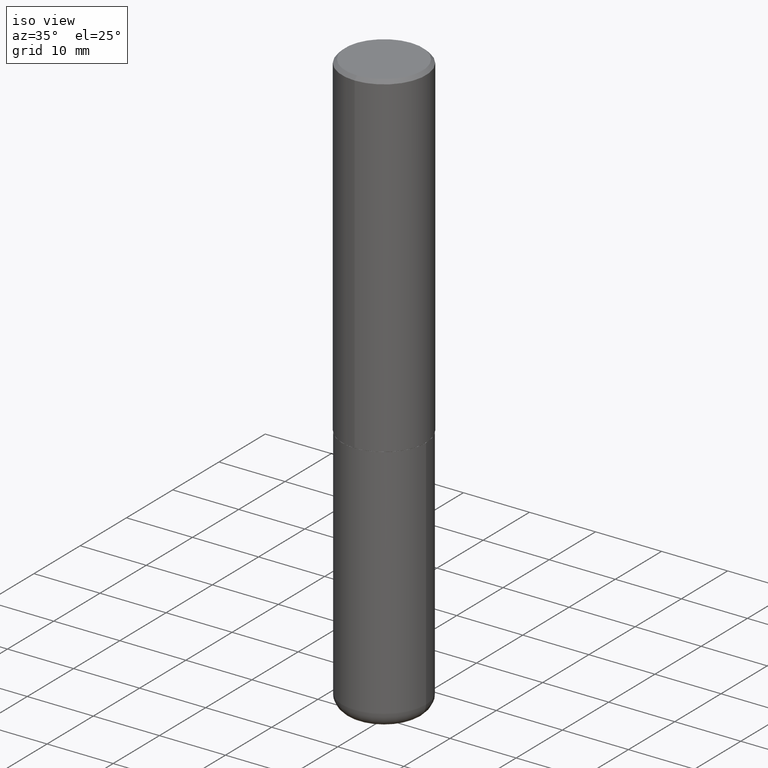
[diagram: clean part render]
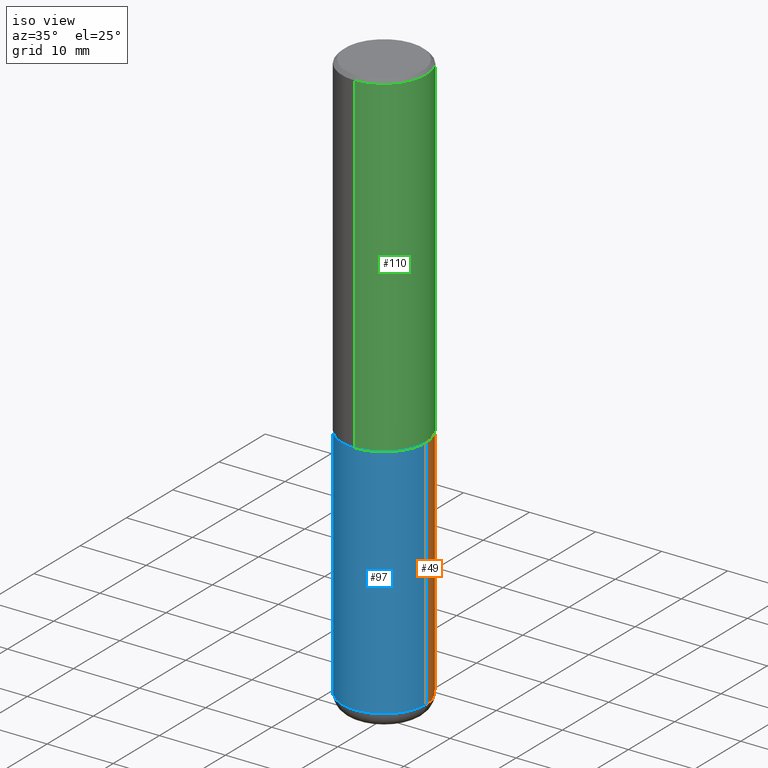
[diagram: same view with three faces highlighted in distinct colors, each labeled with its STEP entity id]
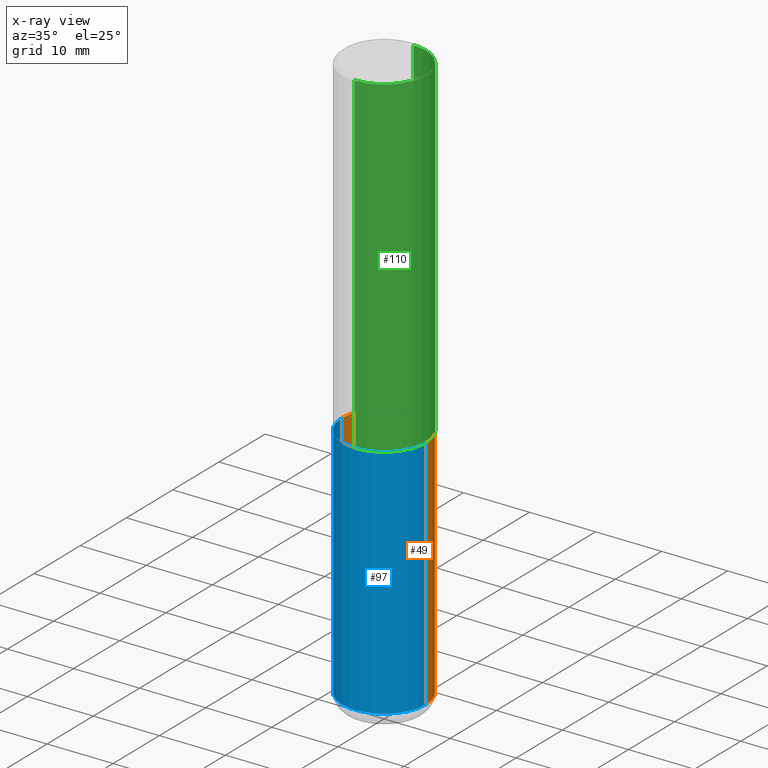
[diagram: x-ray of the same camera — body ghosted, the three highlighted faces saturated]
A machine part, iso view with three faces highlighted in distinct colors.
The next image is the same camera in x-ray (body ghosted, the three faces saturated) — at least one of them is partly hidden behind the body in this view.
Their STEP definitions:

[orange] entity #49 — the highlighted cylindrical surface (partial cylindrical patch) has radius 6.35 mm, axis along (-0, 0, 1).
#2 = EDGE_CURVE ( 'NONE', #184, #77, #141, .T. ) ;
#18 = LINE ( 'NONE', #335, #58 ) ;
#25 = CARTESIAN_POINT ( 'NONE',  ( 0.000000000000000000, 0.000000000000000000, 0.000000000000000000 ) ) ;
#49 = ADVANCED_FACE ( 'NONE', ( #84 ), #406, .T. ) ;
#58 = VECTOR ( 'NONE', #408, 39.37007874015748143 ) ;
#67 = CARTESIAN_POINT ( 'NONE',  ( 0.2499999999999998612, -1.365169203487669276E-14, -3.410000000000000142 ) ) ;
#70 = VERTEX_POINT ( 'NONE', #247 ) ;
#73 = AXIS2_PLACEMENT_3D ( 'NONE', #165, #171, #314 ) ;
#77 = VERTEX_POINT ( 'NONE', #220 ) ;
#84 = FACE_OUTER_BOUND ( 'NONE', #388, .T. ) ;
#87 = CIRCLE ( 'NONE', #189, 0.2500000000000000555 ) ;
#113 = CIRCLE ( 'NONE', #73, 0.2500000000000000000 ) ;
#135 = EDGE_CURVE ( 'NONE', #184, #207, #87, .T. ) ;
#141 = LINE ( 'NONE', #265, #211 ) ;
#157 = EDGE_CURVE ( 'NONE', #77, #70, #113, .T. ) ;
#165 = CARTESIAN_POINT ( 'NONE',  ( 4.890937612370272633E-29, -6.982962677686290376E-15, -1.999999999999999778 ) ) ;
#171 = DIRECTION ( 'NONE',  ( -2.445468806185136597E-29, 3.491481338843145583E-15, 1.000000000000000000 ) ) ;
#184 = VERTEX_POINT ( 'NONE', #67 ) ;
#185 = CARTESIAN_POINT ( 'NONE',  ( 8.339048629091315302E-29, -1.190595136545512608E-14, -3.410000000000000142 ) ) ;
#188 = DIRECTION ( 'NONE',  ( 1.000000000000000000, -6.982962677686269077E-15, 0.000000000000000000 ) ) ;
#189 = AXIS2_PLACEMENT_3D ( 'NONE', #185, #339, #188 ) ;
#207 = VERTEX_POINT ( 'NONE', #349 ) ;
#211 = VECTOR ( 'NONE', #393, 39.37007874015748143 ) ;
#220 = CARTESIAN_POINT ( 'NONE',  ( 0.2500000000000000000, -8.728703347107857054E-15, -1.999999999999999778 ) ) ;
#247 = CARTESIAN_POINT ( 'NONE',  ( -0.2500000000000000000, -7.668100182170457762E-15, -1.999999999999999778 ) ) ;
#265 = CARTESIAN_POINT ( 'NONE',  ( 0.2500000000000000000, -1.745740669421566678E-15, 1.219044193948983948E-29 ) ) ;
#271 = ORIENTED_EDGE ( 'NONE', *, *, #135, .T. ) ;
#306 = DIRECTION ( 'NONE',  ( -2.445468806185136597E-29, 3.491481338843145583E-15, 1.000000000000000000 ) ) ;
#314 = DIRECTION ( 'NONE',  ( 1.000000000000000000, -6.982962677686266711E-15, 0.000000000000000000 ) ) ;
#321 = EDGE_CURVE ( 'NONE', #207, #70, #18, .T. ) ;
#330 = ORIENTED_EDGE ( 'NONE', *, *, #157, .F. ) ;
#335 = CARTESIAN_POINT ( 'NONE',  ( -0.2500000000000000000, 1.776356839400250465E-15, -1.229733772563726445E-29 ) ) ;
#336 = DIRECTION ( 'NONE',  ( 1.000000000000000000, -6.982962677686266711E-15, 4.876176775795935793E-29 ) ) ;
#339 = DIRECTION ( 'NONE',  ( -2.445468806185136597E-29, 3.491481338843145583E-15, 1.000000000000000000 ) ) ;
#349 = CARTESIAN_POINT ( 'NONE',  ( -0.2499999999999998612, -1.012959452605487719E-14, -3.410000000000000142 ) ) ;
#356 = AXIS2_PLACEMENT_3D ( 'NONE', #25, #306, #336 ) ;
#363 = ORIENTED_EDGE ( 'NONE', *, *, #2, .F. ) ;
#388 = EDGE_LOOP ( 'NONE', ( #271, #395, #330, #363 ) ) ;
#393 = DIRECTION ( 'NONE',  ( -2.445468806185136877E-29, 3.491481338843145188E-15, 1.000000000000000000 ) ) ;
#395 = ORIENTED_EDGE ( 'NONE', *, *, #321, .T. ) ;
#406 = CYLINDRICAL_SURFACE ( 'NONE', #356, 0.2500000000000000000 ) ;
#408 = DIRECTION ( 'NONE',  ( -2.445468806185136877E-29, 3.491481338843145188E-15, 1.000000000000000000 ) ) ;

[blue] entity #97 — the highlighted cylindrical surface (partial cylindrical patch) has radius 6.35 mm, axis along (-0, 0, 1).
#2 = EDGE_CURVE ( 'NONE', #184, #77, #141, .T. ) ;
#8 = EDGE_CURVE ( 'NONE', #207, #184, #201, .T. ) ;
#18 = LINE ( 'NONE', #335, #58 ) ;
#23 = DIRECTION ( 'NONE',  ( 1.000000000000000000, -6.982962677686266711E-15, 0.000000000000000000 ) ) ;
#26 = FACE_OUTER_BOUND ( 'NONE', #152, .T. ) ;
#58 = VECTOR ( 'NONE', #408, 39.37007874015748143 ) ;
#67 = CARTESIAN_POINT ( 'NONE',  ( 0.2499999999999998612, -1.365169203487669276E-14, -3.410000000000000142 ) ) ;
#70 = VERTEX_POINT ( 'NONE', #247 ) ;
#77 = VERTEX_POINT ( 'NONE', #220 ) ;
#80 = ORIENTED_EDGE ( 'NONE', *, *, #2, .T. ) ;
#97 = ADVANCED_FACE ( 'NONE', ( #26 ), #370, .T. ) ;
#104 = CARTESIAN_POINT ( 'NONE',  ( 8.339048629091315302E-29, -1.190595136545512608E-14, -3.410000000000000142 ) ) ;
#125 = AXIS2_PLACEMENT_3D ( 'NONE', #104, #412, #342 ) ;
#141 = LINE ( 'NONE', #265, #211 ) ;
#151 = DIRECTION ( 'NONE',  ( -2.445468806185136597E-29, 3.491481338843145583E-15, 1.000000000000000000 ) ) ;
#152 = EDGE_LOOP ( 'NONE', ( #231, #242, #80, #236 ) ) ;
#183 = CARTESIAN_POINT ( 'NONE',  ( 0.000000000000000000, 0.000000000000000000, 0.000000000000000000 ) ) ;
#184 = VERTEX_POINT ( 'NONE', #67 ) ;
#201 = CIRCLE ( 'NONE', #125, 0.2500000000000000555 ) ;
#207 = VERTEX_POINT ( 'NONE', #349 ) ;
#211 = VECTOR ( 'NONE', #393, 39.37007874015748143 ) ;
#216 = CARTESIAN_POINT ( 'NONE',  ( 4.890937612370272633E-29, -6.982962677686290376E-15, -1.999999999999999778 ) ) ;
#217 = DIRECTION ( 'NONE',  ( 1.000000000000000000, -6.982962677686266711E-15, 4.876176775795935793E-29 ) ) ;
#220 = CARTESIAN_POINT ( 'NONE',  ( 0.2500000000000000000, -8.728703347107857054E-15, -1.999999999999999778 ) ) ;
#231 = ORIENTED_EDGE ( 'NONE', *, *, #321, .F. ) ;
#233 = AXIS2_PLACEMENT_3D ( 'NONE', #183, #151, #217 ) ;
#236 = ORIENTED_EDGE ( 'NONE', *, *, #340, .F. ) ;
#242 = ORIENTED_EDGE ( 'NONE', *, *, #8, .T. ) ;
#247 = CARTESIAN_POINT ( 'NONE',  ( -0.2500000000000000000, -7.668100182170457762E-15, -1.999999999999999778 ) ) ;
#265 = CARTESIAN_POINT ( 'NONE',  ( 0.2500000000000000000, -1.745740669421566678E-15, 1.219044193948983948E-29 ) ) ;
#298 = CIRCLE ( 'NONE', #332, 0.2500000000000000000 ) ;
#321 = EDGE_CURVE ( 'NONE', #207, #70, #18, .T. ) ;
#332 = AXIS2_PLACEMENT_3D ( 'NONE', #216, #337, #23 ) ;
#335 = CARTESIAN_POINT ( 'NONE',  ( -0.2500000000000000000, 1.776356839400250465E-15, -1.229733772563726445E-29 ) ) ;
#337 = DIRECTION ( 'NONE',  ( -2.445468806185136597E-29, 3.491481338843145583E-15, 1.000000000000000000 ) ) ;
#340 = EDGE_CURVE ( 'NONE', #70, #77, #298, .T. ) ;
#342 = DIRECTION ( 'NONE',  ( 1.000000000000000000, -6.982962677686269077E-15, 0.000000000000000000 ) ) ;
#349 = CARTESIAN_POINT ( 'NONE',  ( -0.2499999999999998612, -1.012959452605487719E-14, -3.410000000000000142 ) ) ;
#370 = CYLINDRICAL_SURFACE ( 'NONE', #233, 0.2500000000000000000 ) ;
#393 = DIRECTION ( 'NONE',  ( -2.445468806185136877E-29, 3.491481338843145188E-15, 1.000000000000000000 ) ) ;
#408 = DIRECTION ( 'NONE',  ( -2.445468806185136877E-29, 3.491481338843145188E-15, 1.000000000000000000 ) ) ;
#412 = DIRECTION ( 'NONE',  ( -2.445468806185136597E-29, 3.491481338843145583E-15, 1.000000000000000000 ) ) ;

[green] entity #110 — the highlighted cylindrical surface (partial cylindrical patch) has radius 6.35 mm, axis along (-0, 0, 1).
#3 = AXIS2_PLACEMENT_3D ( 'NONE', #232, #354, #196 ) ;
#6 = CARTESIAN_POINT ( 'NONE',  ( 1.776356839400276103E-15, 0.2499999999999933109, -1.999000000000000554 ) ) ;
#11 = VERTEX_POINT ( 'NONE', #124 ) ;
#29 = VECTOR ( 'NONE', #402, 39.37007874015748143 ) ;
#30 = EDGE_CURVE ( 'NONE', #239, #11, #305, .T. ) ;
#34 = AXIS2_PLACEMENT_3D ( 'NONE', #281, #415, #55 ) ;
#51 = CARTESIAN_POINT ( 'NONE',  ( -1.715124499442882299E-15, -0.2500000000000000555, -0.01999999999999918510 ) ) ;
#55 = DIRECTION ( 'NONE',  ( -6.982962677686266711E-15, -1.000000000000000000, 3.491097007558327996E-15 ) ) ;
#82 = FACE_OUTER_BOUND ( 'NONE', #179, .T. ) ;
#96 = AXIS2_PLACEMENT_3D ( 'NONE', #133, #203, #229 ) ;
#106 = CIRCLE ( 'NONE', #96, 0.2500000000000002776 ) ;
#110 = ADVANCED_FACE ( 'NONE', ( #82 ), #215, .T. ) ;
#120 = CARTESIAN_POINT ( 'NONE',  ( 1.776356839400251254E-15, 0.2500000000000001110, -8.727742518895823935E-16 ) ) ;
#124 = CARTESIAN_POINT ( 'NONE',  ( 1.745740669421566875E-15, 0.2499999999999999167, -0.02000000000000092676 ) ) ;
#133 = CARTESIAN_POINT ( 'NONE',  ( 4.889028629390535480E-29, -6.978702918109095527E-15, -1.998999999999999666 ) ) ;
#137 = CARTESIAN_POINT ( 'NONE',  ( -1.745740669421567467E-15, -0.2500000000000001110, 8.727742518895823935E-16 ) ) ;
#150 = ORIENTED_EDGE ( 'NONE', *, *, #30, .T. ) ;
#169 = LINE ( 'NONE', #137, #286 ) ;
#179 = EDGE_LOOP ( 'NONE', ( #208, #150, #210, #398 ) ) ;
#196 = DIRECTION ( 'NONE',  ( -6.982962677686265922E-15, -1.000000000000000000, 3.483106191921935554E-15 ) ) ;
#203 = DIRECTION ( 'NONE',  ( -2.445737183286911680E-29, 3.491097007558327602E-15, 1.000000000000000000 ) ) ;
#204 = VERTEX_POINT ( 'NONE', #289 ) ;
#208 = ORIENTED_EDGE ( 'NONE', *, *, #230, .T. ) ;
#210 = ORIENTED_EDGE ( 'NONE', *, *, #294, .F. ) ;
#215 = CYLINDRICAL_SURFACE ( 'NONE', #34, 0.2500000000000001110 ) ;
#229 = DIRECTION ( 'NONE',  ( -6.982962677686265922E-15, -1.000000000000000000, 3.278217592397112312E-15 ) ) ;
#230 = EDGE_CURVE ( 'NONE', #204, #239, #106, .T. ) ;
#232 = CARTESIAN_POINT ( 'NONE',  ( 4.891474366573836672E-31, -6.982194015116674235E-17, -0.02000000000000005593 ) ) ;
#239 = VERTEX_POINT ( 'NONE', #6 ) ;
#241 = EDGE_CURVE ( 'NONE', #204, #327, #169, .T. ) ;
#257 = CIRCLE ( 'NONE', #3, 0.2500000000000000000 ) ;
#262 = DIRECTION ( 'NONE',  ( -2.445737183286911680E-29, 3.491097007558327602E-15, 1.000000000000000000 ) ) ;
#281 = CARTESIAN_POINT ( 'NONE',  ( 0.000000000000000000, 0.000000000000000000, 0.000000000000000000 ) ) ;
#286 = VECTOR ( 'NONE', #262, 39.37007874015748143 ) ;
#289 = CARTESIAN_POINT ( 'NONE',  ( -1.745740669421519543E-15, -0.2500000000000072164, -1.998999999999998778 ) ) ;
#294 = EDGE_CURVE ( 'NONE', #327, #11, #257, .T. ) ;
#305 = LINE ( 'NONE', #120, #29 ) ;
#327 = VERTEX_POINT ( 'NONE', #51 ) ;
#354 = DIRECTION ( 'NONE',  ( -2.445737183286911680E-29, 3.491097007558327602E-15, 1.000000000000000000 ) ) ;
#398 = ORIENTED_EDGE ( 'NONE', *, *, #241, .F. ) ;
#402 = DIRECTION ( 'NONE',  ( -2.445737183286911680E-29, 3.491097007558327602E-15, 1.000000000000000000 ) ) ;
#415 = DIRECTION ( 'NONE',  ( -2.445737183286911680E-29, 3.491097007558327602E-15, 1.000000000000000000 ) ) ;